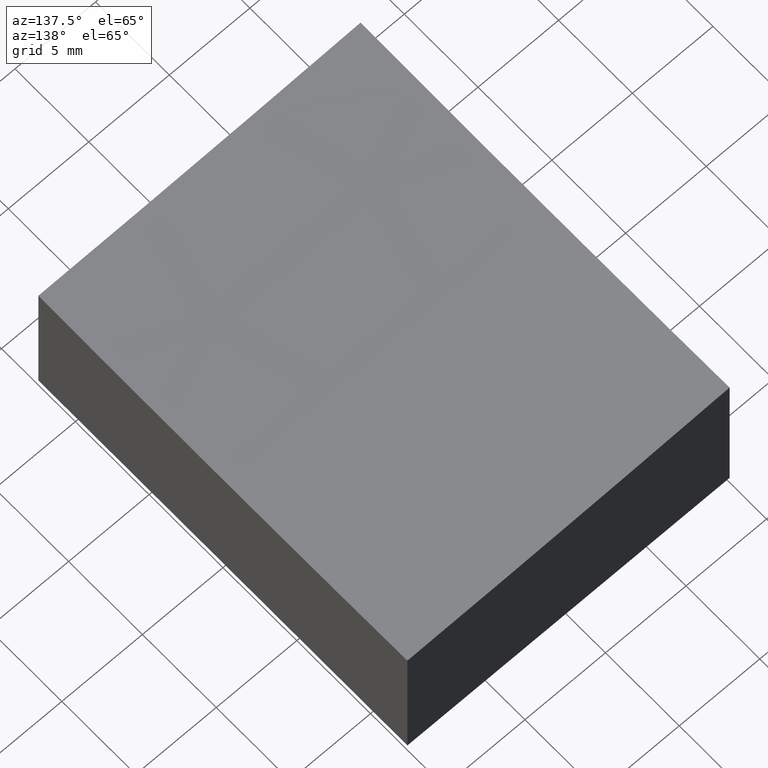
[diagram: clean part render]
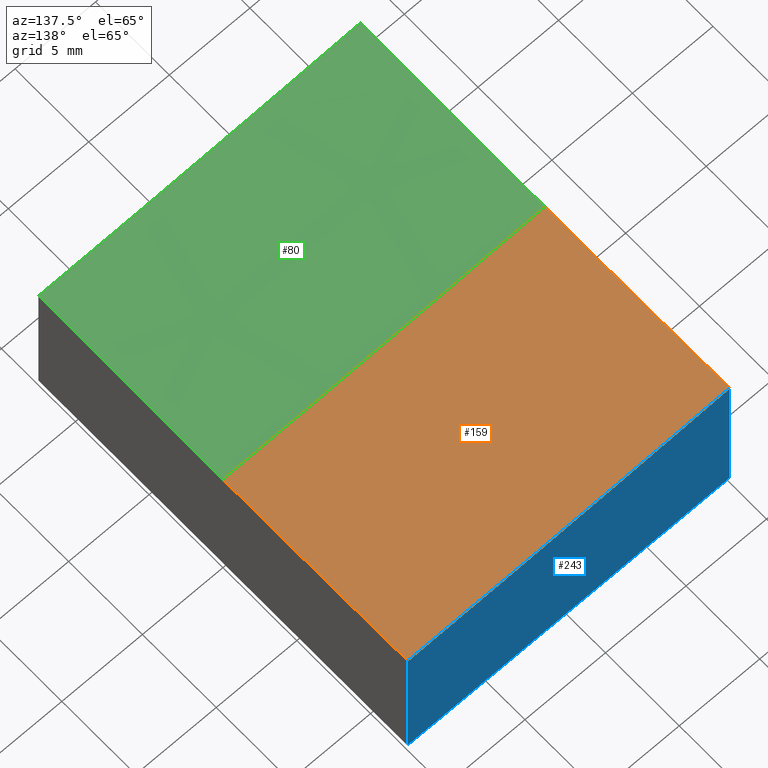
[diagram: same view with three faces highlighted in distinct colors, each labeled with its STEP entity id]
A machine part, auxiliary view with three faces highlighted in distinct colors.
Their STEP definitions:

[orange] entity #159 — the highlighted spherical surface has radius 500 mm.
#4 = DIRECTION ( 'NONE',  ( 1.000000000000000000, 0.000000000000000000, 0.000000000000000000 ) ) ;
#9 = CARTESIAN_POINT ( 'NONE',  ( 10.00000000000000178, 0.000000000000000000, 499.0000000000000000 ) ) ;
#16 = DIRECTION ( 'NONE',  ( -1.000000000000000000, 0.000000000000000000, 1.110223024625156787E-16 ) ) ;
#21 = CIRCLE ( 'NONE', #60, 499.3746088859544443 ) ;
#22 = EDGE_CURVE ( 'NONE', #79, #133, #47, .T. ) ;
#27 = DIRECTION ( 'NONE',  ( 1.734723475976807094E-16, -1.000000000000000000, 0.000000000000000000 ) ) ;
#34 = CARTESIAN_POINT ( 'NONE',  ( -10.00000000000000000, 0.000000000000000000, 499.0000000000000000 ) ) ;
#47 = CIRCLE ( 'NONE', #209, 499.9999999999999432 ) ;
#57 = EDGE_CURVE ( 'NONE', #239, #133, #175, .T. ) ;
#60 = AXIS2_PLACEMENT_3D ( 'NONE', #34, #4, #252 ) ;
#63 = ORIENTED_EDGE ( 'NONE', *, *, #132, .F. ) ;
#70 = CARTESIAN_POINT ( 'NONE',  ( 10.00000000000000178, 12.50000000000000000, -0.8187171365233725240 ) ) ;
#79 = VERTEX_POINT ( 'NONE', #254 ) ;
#83 = DIRECTION ( 'NONE',  ( -1.000000000000000000, 0.000000000000000000, 0.000000000000000000 ) ) ;
#96 = CARTESIAN_POINT ( 'NONE',  ( 10.00000000000000178, 0.000000000000000000, -0.9749993749686991507 ) ) ;
#99 = CARTESIAN_POINT ( 'NONE',  ( -9.999999999999998224, 12.49999999999999645, -0.2181386928964412775 ) ) ;
#110 = EDGE_CURVE ( 'NONE', #79, #226, #21, .T. ) ;
#132 = EDGE_CURVE ( 'NONE', #226, #239, #198, .T. ) ;
#133 = VERTEX_POINT ( 'NONE', #96 ) ;
#140 = FACE_OUTER_BOUND ( 'NONE', #168, .T. ) ;
#143 = ORIENTED_EDGE ( 'NONE', *, *, #57, .F. ) ;
#149 = SPHERICAL_SURFACE ( 'NONE', #241, 499.9999999999999432 ) ;
#152 = DIRECTION ( 'NONE',  ( 1.000000000000000000, 1.735265831305355409E-16, 0.000000000000000000 ) ) ;
#153 = ORIENTED_EDGE ( 'NONE', *, *, #22, .T. ) ;
#159 = ADVANCED_FACE ( 'NONE', ( #140 ), #149, .F. ) ;
#161 = CARTESIAN_POINT ( 'NONE',  ( 15.00000000000006217, 12.50000000000000178, 499.0000000000000000 ) ) ;
#167 = CARTESIAN_POINT ( 'NONE',  ( 15.00000000000006395, 0.000000000000000000, 499.0000000000000000 ) ) ;
#168 = EDGE_LOOP ( 'NONE', ( #195, #153, #143, #63 ) ) ;
#175 = CIRCLE ( 'NONE', #222, 499.9749993749687178 ) ;
#192 = DIRECTION ( 'NONE',  ( 0.000000000000000000, 0.000000000000000000, -1.000000000000000000 ) ) ;
#195 = ORIENTED_EDGE ( 'NONE', *, *, #110, .F. ) ;
#198 = CIRCLE ( 'NONE', #261, 499.8437255783051114 ) ;
#209 = AXIS2_PLACEMENT_3D ( 'NONE', #215, #250, #192 ) ;
#215 = CARTESIAN_POINT ( 'NONE',  ( 15.00000000000006395, 0.000000000000000000, 499.0000000000000000 ) ) ;
#222 = AXIS2_PLACEMENT_3D ( 'NONE', #9, #83, #247 ) ;
#226 = VERTEX_POINT ( 'NONE', #99 ) ;
#234 = DIRECTION ( 'NONE',  ( 0.000000000000000000, 1.000000000000000000, -0.000000000000000000 ) ) ;
#239 = VERTEX_POINT ( 'NONE', #70 ) ;
#241 = AXIS2_PLACEMENT_3D ( 'NONE', #167, #234, #16 ) ;
#247 = DIRECTION ( 'NONE',  ( 0.000000000000000000, 0.000000000000000000, 1.000000000000000000 ) ) ;
#250 = DIRECTION ( 'NONE',  ( 0.000000000000000000, -1.000000000000000000, 0.000000000000000000 ) ) ;
#252 = DIRECTION ( 'NONE',  ( 0.000000000000000000, 0.000000000000000000, -1.000000000000000000 ) ) ;
#254 = CARTESIAN_POINT ( 'NONE',  ( -10.00000000000000000, 0.000000000000000000, -0.3746088859544194349 ) ) ;
#261 = AXIS2_PLACEMENT_3D ( 'NONE', #161, #27, #152 ) ;

[blue] entity #243 — the highlighted planar face has unit normal (0, -1, 0).
#2 = EDGE_CURVE ( 'NONE', #226, #220, #53, .T. ) ;
#5 = ORIENTED_EDGE ( 'NONE', *, *, #132, .T. ) ;
#8 = CARTESIAN_POINT ( 'NONE',  ( -9.999999999999998224, 12.49999999999999645, -10.00000000000000000 ) ) ;
#10 = CARTESIAN_POINT ( 'NONE',  ( 10.00000000000000178, 12.50000000000000000, 10.00000000000000000 ) ) ;
#12 = DIRECTION ( 'NONE',  ( -0.000000000000000000, -0.000000000000000000, -1.000000000000000000 ) ) ;
#18 = FACE_OUTER_BOUND ( 'NONE', #89, .T. ) ;
#27 = DIRECTION ( 'NONE',  ( 1.734723475976807094E-16, -1.000000000000000000, 0.000000000000000000 ) ) ;
#29 = DIRECTION ( 'NONE',  ( -1.000000000000000000, -1.734723475976807094E-16, 0.000000000000000000 ) ) ;
#39 = ORIENTED_EDGE ( 'NONE', *, *, #197, .T. ) ;
#42 = VECTOR ( 'NONE', #12, 1000.000000000000000 ) ;
#53 = LINE ( 'NONE', #141, #42 ) ;
#67 = DIRECTION ( 'NONE',  ( 1.734723475976807094E-16, -1.000000000000000000, 0.000000000000000000 ) ) ;
#70 = CARTESIAN_POINT ( 'NONE',  ( 10.00000000000000178, 12.50000000000000000, -0.8187171365233725240 ) ) ;
#89 = EDGE_LOOP ( 'NONE', ( #232, #5, #39, #106 ) ) ;
#99 = CARTESIAN_POINT ( 'NONE',  ( -9.999999999999998224, 12.49999999999999645, -0.2181386928964412775 ) ) ;
#106 = ORIENTED_EDGE ( 'NONE', *, *, #111, .T. ) ;
#111 = EDGE_CURVE ( 'NONE', #206, #220, #187, .T. ) ;
#112 = LINE ( 'NONE', #191, #138 ) ;
#118 = PLANE ( 'NONE',  #257 ) ;
#120 = CARTESIAN_POINT ( 'NONE',  ( 10.00000000000000178, 12.50000000000000000, -10.00000000000000000 ) ) ;
#132 = EDGE_CURVE ( 'NONE', #226, #239, #198, .T. ) ;
#138 = VECTOR ( 'NONE', #202, 1000.000000000000000 ) ;
#141 = CARTESIAN_POINT ( 'NONE',  ( -9.999999999999998224, 12.49999999999999645, 10.00000000000000000 ) ) ;
#152 = DIRECTION ( 'NONE',  ( 1.000000000000000000, 1.735265831305355409E-16, 0.000000000000000000 ) ) ;
#154 = VECTOR ( 'NONE', #29, 1000.000000000000000 ) ;
#161 = CARTESIAN_POINT ( 'NONE',  ( 15.00000000000006217, 12.50000000000000178, 499.0000000000000000 ) ) ;
#187 = LINE ( 'NONE', #223, #154 ) ;
#191 = CARTESIAN_POINT ( 'NONE',  ( 10.00000000000000178, 12.50000000000000000, 10.00000000000000000 ) ) ;
#197 = EDGE_CURVE ( 'NONE', #239, #206, #112, .T. ) ;
#198 = CIRCLE ( 'NONE', #261, 499.8437255783051114 ) ;
#202 = DIRECTION ( 'NONE',  ( -0.000000000000000000, -0.000000000000000000, -1.000000000000000000 ) ) ;
#206 = VERTEX_POINT ( 'NONE', #120 ) ;
#220 = VERTEX_POINT ( 'NONE', #8 ) ;
#223 = CARTESIAN_POINT ( 'NONE',  ( 10.00000000000000178, 12.50000000000000000, -10.00000000000000000 ) ) ;
#226 = VERTEX_POINT ( 'NONE', #99 ) ;
#232 = ORIENTED_EDGE ( 'NONE', *, *, #2, .F. ) ;
#239 = VERTEX_POINT ( 'NONE', #70 ) ;
#243 = ADVANCED_FACE ( 'NONE', ( #18 ), #118, .F. ) ;
#257 = AXIS2_PLACEMENT_3D ( 'NONE', #10, #67, #269 ) ;
#261 = AXIS2_PLACEMENT_3D ( 'NONE', #161, #27, #152 ) ;
#269 = DIRECTION ( 'NONE',  ( 1.000000000000000000, 1.734723475976807094E-16, 0.000000000000000000 ) ) ;

[green] entity #80 — the highlighted spherical surface has radius 500 mm.
#3 = CIRCLE ( 'NONE', #265, 499.3746088859544443 ) ;
#22 = EDGE_CURVE ( 'NONE', #79, #133, #47, .T. ) ;
#24 = DIRECTION ( 'NONE',  ( 0.000000000000000000, 1.000000000000000000, -0.000000000000000000 ) ) ;
#30 = DIRECTION ( 'NONE',  ( -1.000000000000000000, -1.735265831305355409E-16, 0.000000000000000000 ) ) ;
#35 = ORIENTED_EDGE ( 'NONE', *, *, #185, .F. ) ;
#47 = CIRCLE ( 'NONE', #209, 499.9999999999999432 ) ;
#48 = AXIS2_PLACEMENT_3D ( 'NONE', #74, #246, #142 ) ;
#49 = AXIS2_PLACEMENT_3D ( 'NONE', #268, #147, #30 ) ;
#52 = CARTESIAN_POINT ( 'NONE',  ( -9.999999999999998224, -12.50000000000000355, -0.2181386928964412775 ) ) ;
#65 = CARTESIAN_POINT ( 'NONE',  ( 15.00000000000006395, 0.000000000000000000, 499.0000000000000000 ) ) ;
#74 = CARTESIAN_POINT ( 'NONE',  ( 10.00000000000000178, 0.000000000000000000, 499.0000000000000000 ) ) ;
#76 = EDGE_CURVE ( 'NONE', #203, #86, #217, .T. ) ;
#78 = DIRECTION ( 'NONE',  ( 0.000000000000000000, 0.000000000000000000, -1.000000000000000000 ) ) ;
#79 = VERTEX_POINT ( 'NONE', #254 ) ;
#80 = ADVANCED_FACE ( 'NONE', ( #274 ), #169, .F. ) ;
#86 = VERTEX_POINT ( 'NONE', #52 ) ;
#96 = CARTESIAN_POINT ( 'NONE',  ( 10.00000000000000178, 0.000000000000000000, -0.9749993749686991507 ) ) ;
#97 = EDGE_LOOP ( 'NONE', ( #150, #35, #116, #235 ) ) ;
#105 = DIRECTION ( 'NONE',  ( -1.000000000000000000, 0.000000000000000000, 1.110223024625156787E-16 ) ) ;
#116 = ORIENTED_EDGE ( 'NONE', *, *, #76, .F. ) ;
#133 = VERTEX_POINT ( 'NONE', #96 ) ;
#142 = DIRECTION ( 'NONE',  ( 0.000000000000000000, 0.000000000000000000, 1.000000000000000000 ) ) ;
#146 = DIRECTION ( 'NONE',  ( 1.000000000000000000, 0.000000000000000000, 0.000000000000000000 ) ) ;
#147 = DIRECTION ( 'NONE',  ( -1.734723475976807094E-16, 1.000000000000000000, 0.000000000000000000 ) ) ;
#150 = ORIENTED_EDGE ( 'NONE', *, *, #22, .F. ) ;
#158 = AXIS2_PLACEMENT_3D ( 'NONE', #65, #24, #105 ) ;
#169 = SPHERICAL_SURFACE ( 'NONE', #158, 499.9999999999999432 ) ;
#185 = EDGE_CURVE ( 'NONE', #86, #79, #3, .T. ) ;
#190 = CIRCLE ( 'NONE', #48, 499.9749993749687178 ) ;
#192 = DIRECTION ( 'NONE',  ( 0.000000000000000000, 0.000000000000000000, -1.000000000000000000 ) ) ;
#203 = VERTEX_POINT ( 'NONE', #231 ) ;
#207 = EDGE_CURVE ( 'NONE', #133, #203, #190, .T. ) ;
#209 = AXIS2_PLACEMENT_3D ( 'NONE', #215, #250, #192 ) ;
#215 = CARTESIAN_POINT ( 'NONE',  ( 15.00000000000006395, 0.000000000000000000, 499.0000000000000000 ) ) ;
#217 = CIRCLE ( 'NONE', #49, 499.8437255783051114 ) ;
#231 = CARTESIAN_POINT ( 'NONE',  ( 10.00000000000000178, -12.50000000000000000, -0.8187171365233725240 ) ) ;
#235 = ORIENTED_EDGE ( 'NONE', *, *, #207, .F. ) ;
#246 = DIRECTION ( 'NONE',  ( -1.000000000000000000, 0.000000000000000000, 0.000000000000000000 ) ) ;
#250 = DIRECTION ( 'NONE',  ( 0.000000000000000000, -1.000000000000000000, 0.000000000000000000 ) ) ;
#254 = CARTESIAN_POINT ( 'NONE',  ( -10.00000000000000000, 0.000000000000000000, -0.3746088859544194349 ) ) ;
#265 = AXIS2_PLACEMENT_3D ( 'NONE', #267, #146, #78 ) ;
#267 = CARTESIAN_POINT ( 'NONE',  ( -10.00000000000000000, 0.000000000000000000, 499.0000000000000000 ) ) ;
#268 = CARTESIAN_POINT ( 'NONE',  ( 15.00000000000006573, -12.49999999999999822, 499.0000000000000000 ) ) ;
#274 = FACE_OUTER_BOUND ( 'NONE', #97, .T. ) ;